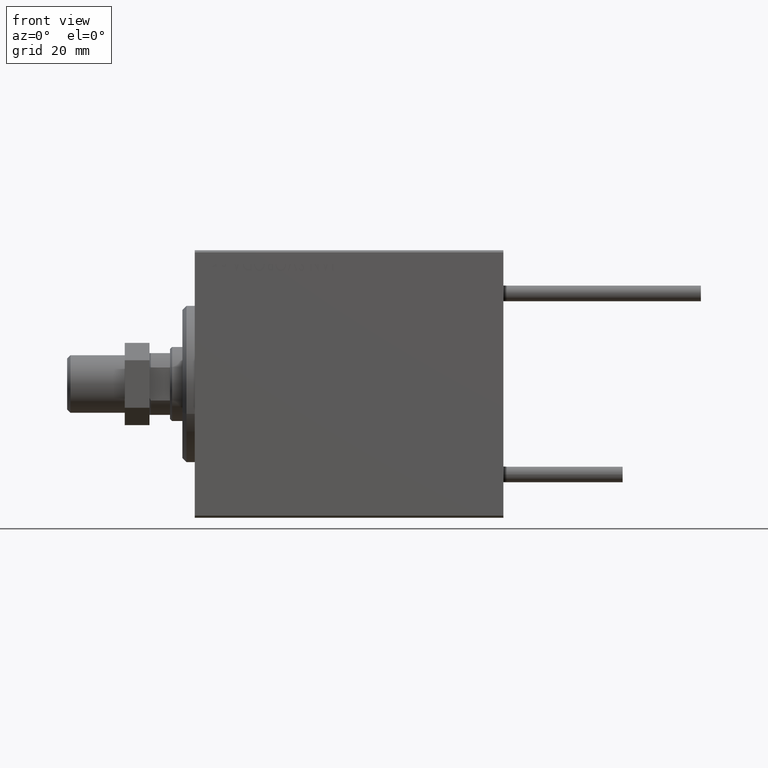
[diagram: clean part render]
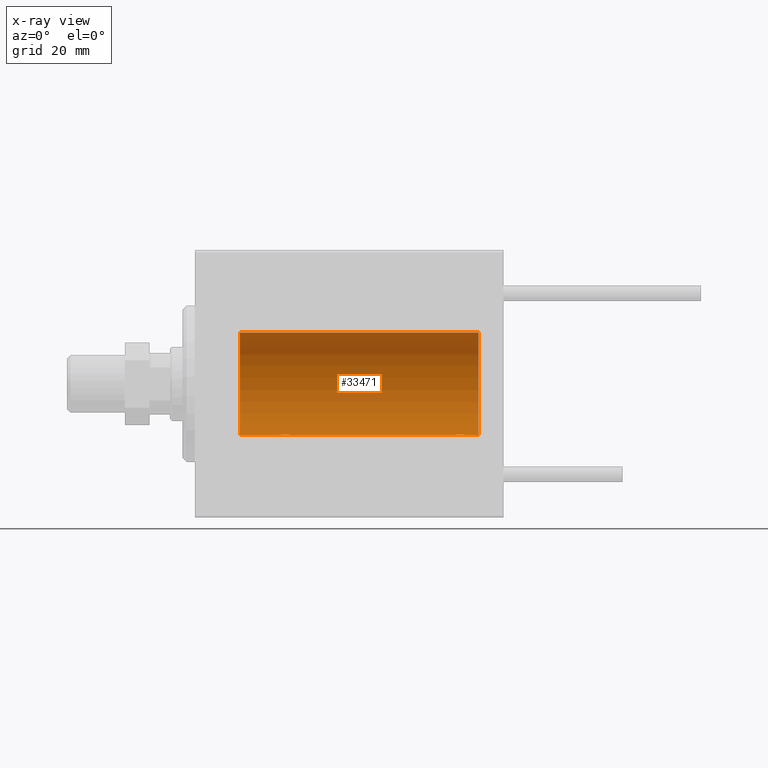
[diagram: x-ray — body ghosted, one internal face saturated and labeled with its STEP entity id]
A machine part, front view, then the same camera in x-ray: the body is ghosted and one INTERNAL B-rep face — a face not visible from any outside direction — is saturated and labeled: STEP entity #33471.
In plain terms, the highlighted cylindrical surface (partial cylindrical patch) has radius 12.5 mm, axis along (-1, -0, -0).
Its self-contained STEP definition (entity closure, byte-faithful):
#347 = CARTESIAN_POINT ( 'NONE',  ( 62.56395648222637362, 0.5184196815545989434, -12.48990118705761176 ) ) ;
#850 = CARTESIAN_POINT ( 'NONE',  ( 62.51301208516349561, 0.2624928479599840658, -12.49789934882883458 ) ) ;
#1101 = CARTESIAN_POINT ( 'NONE',  ( 63.49316879552500836, 1.747608771958128360, -12.37764291807175532 ) ) ;
#1436 = AXIS2_PLACEMENT_3D ( 'NONE', #38227, #42838, #45945 ) ;
#1464 = EDGE_CURVE ( 'NONE', #35890, #34988, #17382, .T. ) ;
#1501 = CARTESIAN_POINT ( 'NONE',  ( 23.50733550364322255, 1.321095788880538136, -12.43034574091277911 ) ) ;
#2222 = B_SPLINE_CURVE_WITH_KNOTS ( 'NONE', 3,
 ( #20603, #35518, #850, #347, #27539, #36267, #31903, #43199, #31649, #47326, #1101, #47580, #32160, #12145, #39608, #8275, #27793, #8016, #4442, #43457, #20346, #8525, #20096, #35762, #16752, #43710, #23692, #16500, #8776, #47839 ),
 .UNSPECIFIED., .F., .F.,
 ( 4, 2, 2, 2, 2, 2, 2, 2, 2, 2, 2, 2, 2, 2, 4 ),
 ( 1.231070527911204700E-19, 0.0003914362731607716147, 0.0007828725463215431210, 0.001174308819482314898, 0.001565745092643086242, 0.002348617638964600306, 0.003131490185286114371, 0.003522926458446871620, 0.003914362731607628001, 0.004305799004768385251, 0.004697235277929141632, 0.005088671551089898881, 0.005480107824250656130, 0.005871544097411412512, 0.006262980370572170628 ),
 .UNSPECIFIED. ) ;
#2249 = CARTESIAN_POINT ( 'NONE',  ( 22.26269462454597914, 1.986986967296540119, -12.34109209020652465 ) ) ;
#2530 = CARTESIAN_POINT ( 'NONE',  ( 19.99999999999999645, -3.966047509268588167E-15, -12.50000000000000000 ) ) ;
#3306 = DIRECTION ( 'NONE',  ( 0.000000000000000000, 0.000000000000000000, 1.000000000000000000 ) ) ;
#3471 = CARTESIAN_POINT ( 'NONE',  ( 10.99999999999999645, 1.530808498934191521E-15, -12.50000000000000000 ) ) ;
#4442 = CARTESIAN_POINT ( 'NONE',  ( 65.50335814299182857, 1.734998657226759278, -12.37922086519035858 ) ) ;
#4620 = VERTEX_POINT ( 'NONE', #27992 ) ;
#5343 = CARTESIAN_POINT ( 'NONE',  ( 23.00335814299181436, 1.734998657226765939, -12.37922086519035325 ) ) ;
#5832 = CARTESIAN_POINT ( 'NONE',  ( 20.49398366327207910, 1.322451657002076120, -12.43019346654084956 ) ) ;
#6329 = CARTESIAN_POINT ( 'NONE',  ( 24.00000000000000000, 1.530808426277417854E-15, -12.50000000000000000 ) ) ;
#6407 = DIRECTION ( 'NONE',  ( -1.000000000000000000, -0.000000000000000000, -0.000000000000000000 ) ) ;
#6623 = CARTESIAN_POINT ( 'NONE',  ( 10.99999999999999645, 0.000000000000000000, 0.000000000000000000 ) ) ;
#6795 = EDGE_LOOP ( 'NONE', ( #35806, #33254, #47069, #49802, #14947, #48305, #28917, #8613 ) ) ;
#6838 = CARTESIAN_POINT ( 'NONE',  ( 23.58991408680628155, 1.220297236145721609, -12.44076681548080288 ) ) ;
#6925 = LINE ( 'NONE', #14130, #49880 ) ;
#8016 = CARTESIAN_POINT ( 'NONE',  ( 65.38656313533014952, 1.797558627508990758, -12.37018026341338484 ) ) ;
#8275 = CARTESIAN_POINT ( 'NONE',  ( 65.01937350851554243, 1.935814255713563359, -12.34922241902462758 ) ) ;
#8525 = CARTESIAN_POINT ( 'NONE',  ( 66.00733550364320479, 1.321095788880533695, -12.43034574091277911 ) ) ;
#8613 = ORIENTED_EDGE ( 'NONE', *, *, #27578, .T. ) ;
#8776 = CARTESIAN_POINT ( 'NONE',  ( 66.50000000000000000, 0.1306394121199378755, -12.50000000000000178 ) ) ;
#8938 = CARTESIAN_POINT ( 'NONE',  ( 20.77033506126850426, 1.598680238462369951, -12.39873273758732175 ) ) ;
#9186 = CARTESIAN_POINT ( 'NONE',  ( 20.20300788371381273, 0.8876934327478117615, -12.46903010196599304 ) ) ;
#9204 = VERTEX_POINT ( 'NONE', #43040 ) ;
#9928 = CARTESIAN_POINT ( 'NONE',  ( 22.64415233770293412, 1.897967064543090165, -12.35517291625592051 ) ) ;
#10502 = B_SPLINE_CURVE_WITH_KNOTS ( 'NONE', 3,
 ( #40998, #13052, #29445, #16902, #36670, #9186, #21738, #33302, #5832, #8938, #48244, #48979, #21496, #28709, #2249, #24853, #9928, #37168, #5343, #45114, #24606, #1501, #6838, #49736, #42017, #41501, #34843, #14560, #22511, #6329 ),
 .UNSPECIFIED., .F., .F.,
 ( 4, 2, 2, 2, 2, 2, 2, 2, 2, 2, 2, 2, 2, 2, 4 ),
 ( 3.611342868676865251E-19, 0.0003914362731607586585, 0.0007828725463215168833, 0.001174308819482275217, 0.001565745092643033550, 0.002348617638964549999, 0.003131490185286066666, 0.003522926458446830420, 0.003914362731607594174, 0.004305799004768357495, 0.004697235277929121683, 0.005088671551089885003, 0.005480107824250649191, 0.005871544097411412512, 0.006262980370572176700 ),
 .UNSPECIFIED. ) ;
#10739 = DIRECTION ( 'NONE',  ( -1.000000000000000000, 0.000000000000000000, 0.000000000000000000 ) ) ;
#12145 = CARTESIAN_POINT ( 'NONE',  ( 64.62992629360267927, 2.000049200055391996, -12.33895470450623044 ) ) ;
#12523 = EDGE_CURVE ( 'NONE', #35890, #46429, #10502, .T. ) ;
#13052 = CARTESIAN_POINT ( 'NONE',  ( 19.99999999999999645, 0.1323736289504319763, -12.50000000000000000 ) ) ;
#14130 = CARTESIAN_POINT ( 'NONE',  ( 69.00000000000000000, 1.530808498934191521E-15, -12.50000000000000000 ) ) ;
#14560 = CARTESIAN_POINT ( 'NONE',  ( 23.98690384766256400, 0.2633501011236120681, -12.49788564268284041 ) ) ;
#14623 = VECTOR ( 'NONE', #6407, 1000.000000000000000 ) ;
#14947 = ORIENTED_EDGE ( 'NONE', *, *, #1464, .F. ) ;
#15868 = DIRECTION ( 'NONE',  ( -1.000000000000000000, -0.000000000000000000, -0.000000000000000000 ) ) ;
#16500 = CARTESIAN_POINT ( 'NONE',  ( 66.48690384766254624, 0.2633501011236129563, -12.49788564268283686 ) ) ;
#16752 = CARTESIAN_POINT ( 'NONE',  ( 66.29742491916155700, 0.8868029758979355526, -12.46909283808506430 ) ) ;
#16902 = CARTESIAN_POINT ( 'NONE',  ( 20.06395648222636652, 0.5184196815546032733, -12.48990118705761532 ) ) ;
#17382 = LINE ( 'NONE', #28932, #47636 ) ;
#18277 = DIRECTION ( 'NONE',  ( 0.000000000000000000, 0.000000000000000000, 1.000000000000000000 ) ) ;
#20096 = CARTESIAN_POINT ( 'NONE',  ( 66.08991408680628865, 1.220297236145716724, -12.44076681548080465 ) ) ;
#20346 = CARTESIAN_POINT ( 'NONE',  ( 65.82102833500698580, 1.507394620545635222, -12.40913174964213184 ) ) ;
#20603 = CARTESIAN_POINT ( 'NONE',  ( 62.50000000000000000, -6.782673595553849353E-15, -12.50000000000000000 ) ) ;
#20859 = CARTESIAN_POINT ( 'NONE',  ( 10.99999999999999645, 0.000000000000000000, 12.50000000000000000 ) ) ;
#21496 = CARTESIAN_POINT ( 'NONE',  ( 21.73788193668374902, 1.999901172190678533, -12.33897869807161385 ) ) ;
#21738 = CARTESIAN_POINT ( 'NONE',  ( 20.26446744561862801, 1.002494658017155871, -12.46021263690096958 ) ) ;
#22050 = VECTOR ( 'NONE', #15868, 1000.000000000000000 ) ;
#22511 = CARTESIAN_POINT ( 'NONE',  ( 24.00000000000000711, 0.1306394121199392910, -12.50000000000000533 ) ) ;
#23069 = EDGE_CURVE ( 'NONE', #44395, #34988, #42984, .T. ) ;
#23692 = CARTESIAN_POINT ( 'NONE',  ( 66.43561774521847951, 0.5201193324741335555, -12.48983485452575160 ) ) ;
#24606 = CARTESIAN_POINT ( 'NONE',  ( 23.32102833500698225, 1.507394620545640773, -12.40913174964213184 ) ) ;
#24853 = CARTESIAN_POINT ( 'NONE',  ( 22.51937350851555308, 1.935814255713574905, -12.34922241902463114 ) ) ;
#25929 = DIRECTION ( 'NONE',  ( -1.000000000000000000, -0.000000000000000000, -0.000000000000000000 ) ) ;
#27539 = CARTESIAN_POINT ( 'NONE',  ( 62.60252270298195754, 0.6455696738844866056, -12.48390768591463562 ) ) ;
#27578 = EDGE_CURVE ( 'NONE', #41728, #29220, #2222, .T. ) ;
#27793 = CARTESIAN_POINT ( 'NONE',  ( 65.14415233770293412, 1.897967064543081950, -12.35517291625592051 ) ) ;
#27992 = CARTESIAN_POINT ( 'NONE',  ( 69.00000000000000000, 1.530808498934191521E-15, -12.50000000000000000 ) ) ;
#28709 = CARTESIAN_POINT ( 'NONE',  ( 22.12992629360264729, 2.000049200055402210, -12.33895470450623044 ) ) ;
#28917 = ORIENTED_EDGE ( 'NONE', *, *, #35610, .F. ) ;
#28932 = CARTESIAN_POINT ( 'NONE',  ( 69.00000000000000000, 1.530808498934191521E-15, -12.50000000000000000 ) ) ;
#29203 = CIRCLE ( 'NONE', #33307, 12.50000000000000000 ) ;
#29220 = VERTEX_POINT ( 'NONE', #40197 ) ;
#29445 = CARTESIAN_POINT ( 'NONE',  ( 20.01301208516349206, 0.2624928479599882847, -12.49789934882883458 ) ) ;
#29863 = AXIS2_PLACEMENT_3D ( 'NONE', #6623, #10739, #3306 ) ;
#30273 = CYLINDRICAL_SURFACE ( 'NONE', #1436, 12.50000000000000000 ) ;
#30576 = DIRECTION ( 'NONE',  ( -1.000000000000000000, 0.000000000000000000, 0.000000000000000000 ) ) ;
#31649 = CARTESIAN_POINT ( 'NONE',  ( 62.99398366327206844, 1.322451657002063241, -12.43019346654085133 ) ) ;
#31903 = CARTESIAN_POINT ( 'NONE',  ( 62.76446744561867064, 1.002494658017146767, -12.46021263690097314 ) ) ;
#32160 = CARTESIAN_POINT ( 'NONE',  ( 64.23788193668377744, 1.999901172190670762, -12.33897869807161740 ) ) ;
#33254 = ORIENTED_EDGE ( 'NONE', *, *, #44568, .F. ) ;
#33302 = CARTESIAN_POINT ( 'NONE',  ( 20.40963319990594016, 1.219754986802279451, -12.44082361696003503 ) ) ;
#33307 = AXIS2_PLACEMENT_3D ( 'NONE', #34437, #30576, #18277 ) ;
#33471 = ADVANCED_FACE ( 'NONE', ( #49797 ), #30273, .F. ) ;
#34399 = CARTESIAN_POINT ( 'NONE',  ( 69.00000000000000000, 1.530808498934191521E-15, -12.50000000000000000 ) ) ;
#34437 = CARTESIAN_POINT ( 'NONE',  ( 69.00000000000000000, 0.000000000000000000, 0.000000000000000000 ) ) ;
#34843 = CARTESIAN_POINT ( 'NONE',  ( 23.93561774521849728, 0.5201193324741352209, -12.48983485452574982 ) ) ;
#34988 = VERTEX_POINT ( 'NONE', #3471 ) ;
#35018 = CARTESIAN_POINT ( 'NONE',  ( 24.00000000000000000, 1.530808426277417854E-15, -12.50000000000000000 ) ) ;
#35518 = CARTESIAN_POINT ( 'NONE',  ( 62.50000000000001421, 0.1323736289504287289, -12.50000000000000533 ) ) ;
#35610 = EDGE_CURVE ( 'NONE', #41728, #46429, #6925, .T. ) ;
#35762 = CARTESIAN_POINT ( 'NONE',  ( 66.23470742397610422, 1.003863686549167689, -12.46009879577771606 ) ) ;
#35806 = ORIENTED_EDGE ( 'NONE', *, *, #48636, .F. ) ;
#35881 = CARTESIAN_POINT ( 'NONE',  ( 69.00000000000000000, 0.000000000000000000, 12.50000000000000000 ) ) ;
#35890 = VERTEX_POINT ( 'NONE', #2530 ) ;
#36267 = CARTESIAN_POINT ( 'NONE',  ( 62.70300788371383049, 0.8876934327478079867, -12.46903010196599659 ) ) ;
#36670 = CARTESIAN_POINT ( 'NONE',  ( 20.10252270298193622, 0.6455696738844897142, -12.48390768591463207 ) ) ;
#37168 = CARTESIAN_POINT ( 'NONE',  ( 22.88656313533016373, 1.797558627508998086, -12.37018026341338839 ) ) ;
#37633 = DIRECTION ( 'NONE',  ( -1.000000000000000000, -0.000000000000000000, -0.000000000000000000 ) ) ;
#37883 = CARTESIAN_POINT ( 'NONE',  ( 62.50000000000000000, -6.782673595553849353E-15, -12.50000000000000000 ) ) ;
#38227 = CARTESIAN_POINT ( 'NONE',  ( 69.00000000000000000, 0.000000000000000000, 0.000000000000000000 ) ) ;
#39608 = CARTESIAN_POINT ( 'NONE',  ( 64.76269462454600045, 1.986986967296529905, -12.34109209020653175 ) ) ;
#40197 = CARTESIAN_POINT ( 'NONE',  ( 66.50000000000000000, 1.530808426270318106E-15, -12.50000000000000000 ) ) ;
#40998 = CARTESIAN_POINT ( 'NONE',  ( 19.99999999999999645, -3.966047509268588167E-15, -12.50000000000000000 ) ) ;
#41501 = CARTESIAN_POINT ( 'NONE',  ( 23.89773031393658087, 0.6448065707253023415, -12.48394649977302073 ) ) ;
#41728 = VERTEX_POINT ( 'NONE', #37883 ) ;
#42017 = CARTESIAN_POINT ( 'NONE',  ( 23.79742491916155700, 0.8868029758979399935, -12.46909283808506430 ) ) ;
#42838 = DIRECTION ( 'NONE',  ( -1.000000000000000000, -0.000000000000000000, -0.000000000000000000 ) ) ;
#42984 = CIRCLE ( 'NONE', #29863, 12.50000000000000000 ) ;
#43040 = CARTESIAN_POINT ( 'NONE',  ( 69.00000000000000000, 0.000000000000000000, 12.50000000000000000 ) ) ;
#43199 = CARTESIAN_POINT ( 'NONE',  ( 62.90963319990593305, 1.219754986802269237, -12.44082361696003147 ) ) ;
#43457 = CARTESIAN_POINT ( 'NONE',  ( 65.71980790594581379, 1.590288205413969314, -12.39864157855465088 ) ) ;
#43710 = CARTESIAN_POINT ( 'NONE',  ( 66.39773031393660574, 0.6448065707252987888, -12.48394649977302251 ) ) ;
#44395 = VERTEX_POINT ( 'NONE', #20859 ) ;
#44568 = EDGE_CURVE ( 'NONE', #9204, #4620, #29203, .T. ) ;
#45114 = CARTESIAN_POINT ( 'NONE',  ( 23.21980790594580313, 1.590288205413975309, -12.39864157855465088 ) ) ;
#45447 = LINE ( 'NONE', #34399, #14623 ) ;
#45945 = DIRECTION ( 'NONE',  ( 0.000000000000000000, 0.000000000000000000, 1.000000000000000000 ) ) ;
#46429 = VERTEX_POINT ( 'NONE', #35018 ) ;
#46942 = LINE ( 'NONE', #35881, #22050 ) ;
#47069 = ORIENTED_EDGE ( 'NONE', *, *, #50030, .T. ) ;
#47326 = CARTESIAN_POINT ( 'NONE',  ( 63.27033506126847584, 1.598680238462355963, -12.39873273758731997 ) ) ;
#47580 = CARTESIAN_POINT ( 'NONE',  ( 63.97436412829508612, 1.947190906025034751, -12.34781876294798586 ) ) ;
#47636 = VECTOR ( 'NONE', #37633, 1000.000000000000000 ) ;
#47839 = CARTESIAN_POINT ( 'NONE',  ( 66.50000000000000000, 1.530808426270318106E-15, -12.50000000000000000 ) ) ;
#48244 = CARTESIAN_POINT ( 'NONE',  ( 20.99316879552500481, 1.747608771958139906, -12.37764291807175354 ) ) ;
#48305 = ORIENTED_EDGE ( 'NONE', *, *, #12523, .T. ) ;
#48636 = EDGE_CURVE ( 'NONE', #4620, #29220, #45447, .T. ) ;
#48979 = CARTESIAN_POINT ( 'NONE',  ( 21.47436412829510033, 1.947190906025044077, -12.34781876294798053 ) ) ;
#49736 = CARTESIAN_POINT ( 'NONE',  ( 23.73470742397611843, 1.003863686549172352, -12.46009879577771606 ) ) ;
#49797 = FACE_OUTER_BOUND ( 'NONE', #6795, .T. ) ;
#49802 = ORIENTED_EDGE ( 'NONE', *, *, #23069, .T. ) ;
#49880 = VECTOR ( 'NONE', #25929, 1000.000000000000000 ) ;
#50030 = EDGE_CURVE ( 'NONE', #9204, #44395, #46942, .T. ) ;